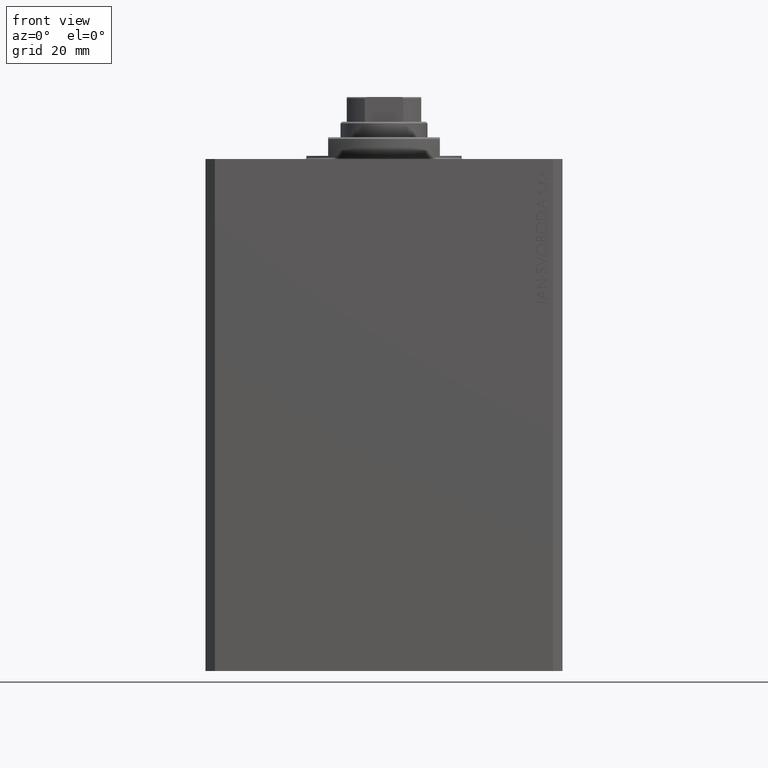
[diagram: clean part render]
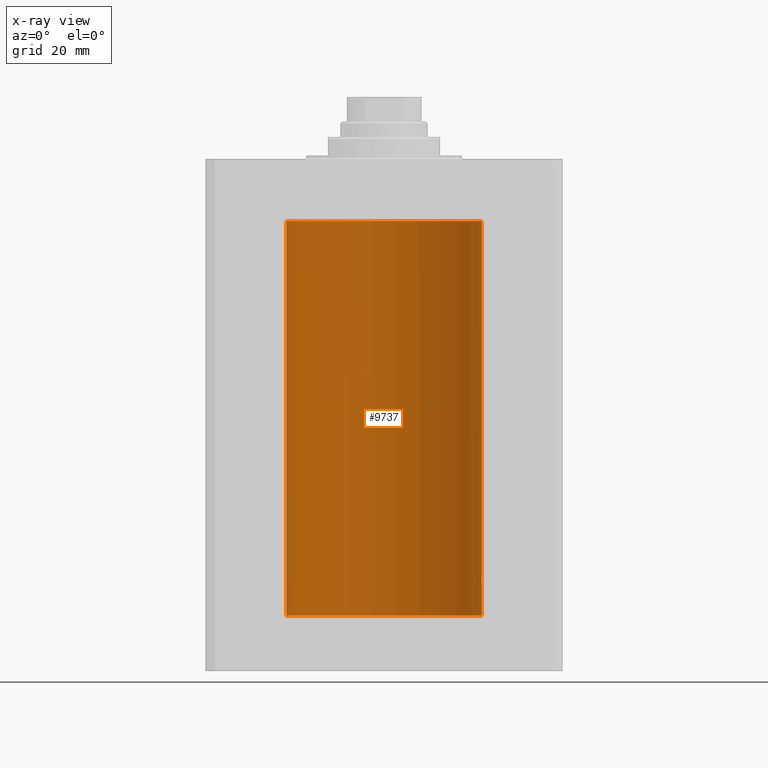
[diagram: x-ray — body ghosted, one internal face saturated and labeled with its STEP entity id]
A machine part, front view, then the same camera in x-ray: the body is ghosted and one INTERNAL B-rep face — a face not visible from any outside direction — is saturated and labeled: STEP entity #9737.
In plain terms, the highlighted cylindrical surface (partial cylindrical patch) has radius 31.5 mm, axis along (0, 0, 1).
Its self-contained STEP definition (entity closure, byte-faithful):
#36 = EDGE_CURVE ( 'NONE', #34369, #35394, #16657, .T. ) ;
#721 = VERTEX_POINT ( 'NONE', #12939 ) ;
#889 = CARTESIAN_POINT ( 'NONE',  ( 31.47656038302703507, 1.219789706799898843, -134.4096921557544988 ) ) ;
#915 = CARTESIAN_POINT ( 'NONE',  ( -31.45162599326494757, 1.747914105633341375, -27.99368423768024527 ) ) ;
#1194 = VERTEX_POINT ( 'NONE', #14681 ) ;
#2192 = CARTESIAN_POINT ( 'NONE',  ( -31.44868630248347330, 1.797956860106296073, -29.88573445525094385 ) ) ;
#4098 = CARTESIAN_POINT ( 'NONE',  ( -31.46402885784291215, 1.507852291435628045, -30.32053570646255736 ) ) ;
#4244 = CARTESIAN_POINT ( 'NONE',  ( 31.50000000000000000, 0.000000000000000000, -147.0999999999999943 ) ) ;
#4296 = CARTESIAN_POINT ( 'NONE',  ( 31.44869941755756315, 1.797728078038221655, -135.1138051504310056 ) ) ;
#4353 = CARTESIAN_POINT ( 'NONE',  ( 0.000000000000000000, 0.000000000000000000, -19.99999999999998934 ) ) ;
#4535 = CARTESIAN_POINT ( 'NONE',  ( -31.44046365243112362, 1.935949445030092253, -29.51885062223535172 ) ) ;
#4541 = CARTESIAN_POINT ( 'NONE',  ( 31.50000000000000000, 0.000000000000000000, -147.0999999999999943 ) ) ;
#4649 = ORIENTED_EDGE ( 'NONE', *, *, #8785, .T. ) ;
#5117 = EDGE_CURVE ( 'NONE', #17691, #721, #7513, .T. ) ;
#5355 = CARTESIAN_POINT ( 'NONE',  ( -31.43990583976198039, 1.947383405442052906, -28.47504952007440693 ) ) ;
#5769 = CARTESIAN_POINT ( 'NONE',  ( 31.47236118406704364, 1.322499398534440429, -137.5059945699081823 ) ) ;
#6626 = EDGE_LOOP ( 'NONE', ( #33779, #41831, #30183, #24681, #27179, #4649, #27835, #20178, #39862 ) ) ;
#7513 = LINE ( 'NONE', #21658, #18940 ) ;
#7669 = CARTESIAN_POINT ( 'NONE',  ( 31.43644381923627051, 2.000000000000389910, -136.0000000000000000 ) ) ;
#7776 = EDGE_CURVE ( 'NONE', #1194, #41801, #36487, .T. ) ;
#7894 = CARTESIAN_POINT ( 'NONE',  ( 31.49597888575898708, 0.5193621964009151881, -134.0641961002934295 ) ) ;
#7916 = CARTESIAN_POINT ( 'NONE',  ( -31.50000000000000000, 1.397936845058764387E-14, -27.00000000000000000 ) ) ;
#7978 = EDGE_CURVE ( 'NONE', #11215, #41801, #10881, .T. ) ;
#8732 = CARTESIAN_POINT ( 'NONE',  ( -31.49597709302052451, 0.5194777340345942962, -30.93577488239865758 ) ) ;
#8785 = EDGE_CURVE ( 'NONE', #25109, #34369, #25209, .T. ) ;
#9151 = CARTESIAN_POINT ( 'NONE',  ( 31.49916827061299784, 0.2622045237009093532, -137.9870193222189130 ) ) ;
#9186 = CARTESIAN_POINT ( 'NONE',  ( -31.44279716593210949, 1.898163692853223061, -29.64354408641193928 ) ) ;
#9369 = CARTESIAN_POINT ( 'NONE',  ( 31.47656968928225751, 1.219587704424718533, -137.5905023401450933 ) ) ;
#9438 = DIRECTION ( 'NONE',  ( 1.000000000000000000, 0.000000000000000000, 0.000000000000000000 ) ) ;
#9581 = CARTESIAN_POINT ( 'NONE',  ( 31.45992223434330981, 1.599182806012582558, -137.2291100714819265 ) ) ;
#9737 = ADVANCED_FACE ( 'NONE', ( #41451 ), #38083, .F. ) ;
#10171 = DIRECTION ( 'NONE',  ( -0.000000000000000000, -0.000000000000000000, 1.000000000000000000 ) ) ;
#10436 = DIRECTION ( 'NONE',  ( 1.000000000000000000, 0.000000000000000000, 0.000000000000000000 ) ) ;
#10535 = VECTOR ( 'NONE', #22914, 1000.000000000000000 ) ;
#10881 = B_SPLINE_CURVE_WITH_KNOTS ( 'NONE', 3,
 ( #7916, #29622, #12127, #14443, #39957, #31736, #12340, #26264, #25820, #22441, #915, #5355, #43101, #32788, #28364, #4535, #9186, #2192, #26040, #22899, #4098, #18256, #39513, #17815, #21623, #42060, #8732, #31521, #14887, #36146 ),
 .UNSPECIFIED., .F., .F.,
 ( 4, 2, 2, 2, 2, 2, 2, 2, 2, 2, 2, 2, 2, 2, 4 ),
 ( 2.625213444697534148E-19, 0.0003909052907595647391, 0.0007818105815191293698, 0.001172715872278693892, 0.001563621163038258956, 0.002345431744557394723, 0.003127242326076530923, 0.003518147616836098807, 0.003909052907595665823, 0.004299958198355233706, 0.004690863489114801589, 0.005081768779874370340, 0.005472674070633938223, 0.005863579361393506106, 0.006254484652153074857 ),
 .UNSPECIFIED. ) ;
#11115 = DIRECTION ( 'NONE',  ( 1.000000000000000000, 0.000000000000000000, 0.000000000000000000 ) ) ;
#11128 = CARTESIAN_POINT ( 'NONE',  ( -31.50000000000000000, 3.857637408943224358E-15, -30.99999999999999645 ) ) ;
#11215 = VERTEX_POINT ( 'NONE', #11738 ) ;
#11262 = CARTESIAN_POINT ( 'NONE',  ( 31.44280827872263018, 1.897980201673368450, -135.3559202626804563 ) ) ;
#11490 = CARTESIAN_POINT ( 'NONE',  ( 31.48420706794360058, 1.003217712170305864, -134.2649149328429132 ) ) ;
#11738 = CARTESIAN_POINT ( 'NONE',  ( -31.50000000000000000, 1.397936845058764387E-14, -27.00000000000000000 ) ) ;
#12127 = CARTESIAN_POINT ( 'NONE',  ( -31.49916865039979186, 0.2621451228717642246, -27.01297480444316079 ) ) ;
#12340 = CARTESIAN_POINT ( 'NONE',  ( -31.48424881603013148, 1.001951351791703804, -27.26414944111796856 ) ) ;
#12526 = CARTESIAN_POINT ( 'NONE',  ( 31.49362851683618914, 0.6450141649083286355, -137.8976700761137124 ) ) ;
#12555 = VECTOR ( 'NONE', #10171, 1000.000000000000000 ) ;
#12939 = CARTESIAN_POINT ( 'NONE',  ( 31.50000000000000000, -5.244345426788806144E-15, -138.0000000000000000 ) ) ;
#13476 = EDGE_CURVE ( 'NONE', #11215, #35394, #25835, .T. ) ;
#14443 = CARTESIAN_POINT ( 'NONE',  ( -31.49600294595510164, 0.5178263803265128473, -27.06380656104273896 ) ) ;
#14479 = DIRECTION ( 'NONE',  ( -0.000000000000000000, -0.000000000000000000, 1.000000000000000000 ) ) ;
#14681 = CARTESIAN_POINT ( 'NONE',  ( -31.50000000000000000, 3.857637417314162689E-15, -147.0999999999999943 ) ) ;
#14887 = CARTESIAN_POINT ( 'NONE',  ( -31.50000000000000000, 0.1305468079557571826, -31.00000000000000000 ) ) ;
#15637 = EDGE_CURVE ( 'NONE', #39467, #25109, #26590, .T. ) ;
#15893 = CARTESIAN_POINT ( 'NONE',  ( 31.50000000000000000, -5.244345426788806144E-15, -138.0000000000000000 ) ) ;
#16563 = CARTESIAN_POINT ( 'NONE',  ( 31.49600115550921231, 0.5179422407981826293, -137.9361644646872378 ) ) ;
#16657 = CIRCLE ( 'NONE', #25346, 31.50000000000000000 ) ;
#17691 = VERTEX_POINT ( 'NONE', #4244 ) ;
#17815 = CARTESIAN_POINT ( 'NONE',  ( -31.48420048909751756, 1.003425746290474763, -30.73496696875380607 ) ) ;
#18010 = CARTESIAN_POINT ( 'NONE',  ( 31.45991621267056004, 1.590260824275577356, -134.7801457396745093 ) ) ;
#18183 = CARTESIAN_POINT ( 'NONE',  ( -31.50000000000000000, 3.857637417314162689E-15, -19.99999999999998934 ) ) ;
#18256 = CARTESIAN_POINT ( 'NONE',  ( -31.47242045906136099, 1.321166510329244925, -30.50729961746650076 ) ) ;
#18940 = VECTOR ( 'NONE', #14479, 1000.000000000000000 ) ;
#19029 = AXIS2_PLACEMENT_3D ( 'NONE', #27761, #34727, #11115 ) ;
#19788 = CARTESIAN_POINT ( 'NONE',  ( 0.000000000000000000, 0.000000000000000000, -147.0999999999999943 ) ) ;
#19946 = CARTESIAN_POINT ( 'NONE',  ( 31.43644381923627051, 2.000000000000389910, -136.0000000000000000 ) ) ;
#20178 = ORIENTED_EDGE ( 'NONE', *, *, #13476, .F. ) ;
#21318 = B_SPLINE_CURVE_WITH_KNOTS ( 'NONE', 3,
 ( #15893, #29589, #9151, #16563, #12526, #36564, #39919, #9369, #5769, #9581, #23298, #37002, #26893, #19946 ),
 .UNSPECIFIED., .F., .F.,
 ( 4, 2, 2, 2, 2, 2, 4 ),
 ( 5.096331421419789159E-18, 0.0003909946087814292703, 0.0007819892175628534448, 0.001172983826344277999, 0.001563978435125702553, 0.002345967652688551661, 0.003127956870251400769 ),
 .UNSPECIFIED. ) ;
#21385 = CARTESIAN_POINT ( 'NONE',  ( 31.43728213781475489, 1.986944500966170146, -135.7370380017273135 ) ) ;
#21599 = CARTESIAN_POINT ( 'NONE',  ( 31.49916210907646175, 0.2630769646869162703, -134.0130766648357508 ) ) ;
#21623 = CARTESIAN_POINT ( 'NONE',  ( -31.48775605676681266, 0.8865158617371098337, -30.79757944476694576 ) ) ;
#21658 = CARTESIAN_POINT ( 'NONE',  ( 31.50000000000000000, 0.000000000000000000, -147.0999999999999943 ) ) ;
#22238 = CARTESIAN_POINT ( 'NONE',  ( -31.50000000000000000, 3.857637417314162689E-15, -147.0999999999999943 ) ) ;
#22441 = CARTESIAN_POINT ( 'NONE',  ( -31.45993541206224720, 1.598922699014384996, -27.77056366933358689 ) ) ;
#22899 = CARTESIAN_POINT ( 'NONE',  ( -31.45990328919314649, 1.590516142808641842, -30.21952462249807425 ) ) ;
#22914 = DIRECTION ( 'NONE',  ( -0.000000000000000000, -0.000000000000000000, 1.000000000000000000 ) ) ;
#23298 = CARTESIAN_POINT ( 'NONE',  ( 31.45161214644910075, 1.748160858796773631, -137.0059024499661291 ) ) ;
#24550 = CARTESIAN_POINT ( 'NONE',  ( -31.50000000000000000, 3.857637417314162689E-15, -147.0999999999999943 ) ) ;
#24681 = ORIENTED_EDGE ( 'NONE', *, *, #29332, .T. ) ;
#24916 = CIRCLE ( 'NONE', #25620, 31.50000000000000000 ) ;
#24966 = CARTESIAN_POINT ( 'NONE',  ( 31.48776132734998967, 0.8863252928784803863, -134.2023288708493283 ) ) ;
#24972 = CARTESIAN_POINT ( 'NONE',  ( 31.50000000000000000, -8.369814204394935255E-24, -134.0000000000000000 ) ) ;
#25109 = VERTEX_POINT ( 'NONE', #24972 ) ;
#25180 = CARTESIAN_POINT ( 'NONE',  ( 31.50000000000000711, 0.1305169792915967519, -133.9999999999999432 ) ) ;
#25209 = LINE ( 'NONE', #4541, #33371 ) ;
#25346 = AXIS2_PLACEMENT_3D ( 'NONE', #4353, #28404, #10436 ) ;
#25402 = CARTESIAN_POINT ( 'NONE',  ( 31.50000000000000000, -8.369814204394935255E-24, -134.0000000000000000 ) ) ;
#25620 = AXIS2_PLACEMENT_3D ( 'NONE', #19788, #40217, #9438 ) ;
#25820 = CARTESIAN_POINT ( 'NONE',  ( -31.47237164446477209, 1.322250186170389252, -27.49378908604443694 ) ) ;
#25835 = LINE ( 'NONE', #22238, #10535 ) ;
#26040 = CARTESIAN_POINT ( 'NONE',  ( -31.45224836082999431, 1.735318303535943185, -30.00282216311122951 ) ) ;
#26264 = CARTESIAN_POINT ( 'NONE',  ( -31.47657892357849718, 1.219347894895174589, -27.40931637798618326 ) ) ;
#26590 = B_SPLINE_CURVE_WITH_KNOTS ( 'NONE', 3,
 ( #7669, #42033, #21385, #42259, #11262, #4296, #32367, #18010, #42697, #31712, #889, #11490, #24966, #38673, #7894, #21599, #25180, #25402 ),
 .UNSPECIFIED., .F., .F.,
 ( 4, 2, 2, 2, 2, 2, 2, 2, 4 ),
 ( 0.003127956870251400769, 0.003518772842989208692, 0.003909588815727015748, 0.004300404788464823672, 0.004691220761202631595, 0.005082036733940439518, 0.005472852706678247442, 0.005863668679416054498, 0.006254484652153862421 ),
 .UNSPECIFIED. ) ;
#26893 = CARTESIAN_POINT ( 'NONE',  ( 31.43644381923627762, 2.000000000000387246, -136.2610318865086185 ) ) ;
#27179 = ORIENTED_EDGE ( 'NONE', *, *, #15637, .T. ) ;
#27761 = CARTESIAN_POINT ( 'NONE',  ( 0.000000000000000000, 0.000000000000000000, -147.0999999999999943 ) ) ;
#27835 = ORIENTED_EDGE ( 'NONE', *, *, #36, .T. ) ;
#28364 = CARTESIAN_POINT ( 'NONE',  ( -31.43727648790974172, 1.987033456253953112, -29.26230567213424294 ) ) ;
#28404 = DIRECTION ( 'NONE',  ( 0.000000000000000000, 0.000000000000000000, 1.000000000000000000 ) ) ;
#29332 = EDGE_CURVE ( 'NONE', #721, #39467, #21318, .T. ) ;
#29589 = CARTESIAN_POINT ( 'NONE',  ( 31.50000000000000711, 0.1322106156816646172, -138.0000000000000568 ) ) ;
#29622 = CARTESIAN_POINT ( 'NONE',  ( -31.50000000000000711, 0.1321804137546035152, -27.00000000000000711 ) ) ;
#30183 = ORIENTED_EDGE ( 'NONE', *, *, #5117, .T. ) ;
#31521 = CARTESIAN_POINT ( 'NONE',  ( -31.49916171907896256, 0.2631371420809984762, -30.98691729972353315 ) ) ;
#31712 = CARTESIAN_POINT ( 'NONE',  ( 31.47243113015943550, 1.320912165297383201, -134.4924797776056948 ) ) ;
#31736 = CARTESIAN_POINT ( 'NONE',  ( -31.48773989768472603, 0.8870801819049330961, -27.20270307449468916 ) ) ;
#32367 = CARTESIAN_POINT ( 'NONE',  ( 31.45226167581968113, 1.735077252816690230, -134.9967648169954657 ) ) ;
#32788 = CARTESIAN_POINT ( 'NONE',  ( -31.43644085734510796, 2.000046555665927261, -29.12976806868835666 ) ) ;
#33371 = VECTOR ( 'NONE', #38922, 1000.000000000000000 ) ;
#33779 = ORIENTED_EDGE ( 'NONE', *, *, #7776, .F. ) ;
#34369 = VERTEX_POINT ( 'NONE', #42473 ) ;
#34727 = DIRECTION ( 'NONE',  ( -0.000000000000000000, -0.000000000000000000, 1.000000000000000000 ) ) ;
#35394 = VERTEX_POINT ( 'NONE', #18183 ) ;
#36146 = CARTESIAN_POINT ( 'NONE',  ( -31.50000000000000000, 3.857637408943224358E-15, -30.99999999999999645 ) ) ;
#36487 = LINE ( 'NONE', #24550, #12555 ) ;
#36564 = CARTESIAN_POINT ( 'NONE',  ( 31.48773468680478160, 0.8872681233992232297, -137.7972062396702313 ) ) ;
#37002 = CARTESIAN_POINT ( 'NONE',  ( 31.43989559156923264, 1.947546710638696110, -136.5243738522823378 ) ) ;
#38083 = CYLINDRICAL_SURFACE ( 'NONE', #19029, 31.50000000000000000 ) ;
#38544 = EDGE_CURVE ( 'NONE', #17691, #1194, #24916, .T. ) ;
#38673 = CARTESIAN_POINT ( 'NONE',  ( 31.49364883223205425, 0.6440257487116654023, -134.1019945078124351 ) ) ;
#38922 = DIRECTION ( 'NONE',  ( -0.000000000000000000, -0.000000000000000000, 1.000000000000000000 ) ) ;
#39467 = VERTEX_POINT ( 'NONE', #42226 ) ;
#39513 = CARTESIAN_POINT ( 'NONE',  ( -31.47655123270016375, 1.220027114947935809, -30.59012812369856960 ) ) ;
#39862 = ORIENTED_EDGE ( 'NONE', *, *, #7978, .T. ) ;
#39919 = CARTESIAN_POINT ( 'NONE',  ( 31.48424227690099642, 1.002158581476550347, -137.7357332860677843 ) ) ;
#39957 = CARTESIAN_POINT ( 'NONE',  ( -31.49363138352033431, 0.6448700584747274478, -27.10228292539639128 ) ) ;
#40217 = DIRECTION ( 'NONE',  ( 0.000000000000000000, 0.000000000000000000, 1.000000000000000000 ) ) ;
#41451 = FACE_OUTER_BOUND ( 'NONE', #6626, .T. ) ;
#41801 = VERTEX_POINT ( 'NONE', #11128 ) ;
#41831 = ORIENTED_EDGE ( 'NONE', *, *, #38544, .F. ) ;
#42033 = CARTESIAN_POINT ( 'NONE',  ( 31.43644381923627051, 2.000000000000391687, -135.8695436863447412 ) ) ;
#42060 = CARTESIAN_POINT ( 'NONE',  ( -31.49364602877929897, 0.6441674297270015837, -30.89795957697708317 ) ) ;
#42226 = CARTESIAN_POINT ( 'NONE',  ( 31.43644381923627051, 2.000000000000389910, -136.0000000000000000 ) ) ;
#42259 = CARTESIAN_POINT ( 'NONE',  ( 31.44047330683569186, 1.935793094480593224, -135.4805747813048526 ) ) ;
#42473 = CARTESIAN_POINT ( 'NONE',  ( 31.50000000000000000, 0.000000000000000000, -19.99999999999998934 ) ) ;
#42697 = CARTESIAN_POINT ( 'NONE',  ( 31.46404119587053927, 1.507594711990238201, -134.6791728524376310 ) ) ;
#43101 = CARTESIAN_POINT ( 'NONE',  ( -31.43644976744935349, 1.999906504661145057, -28.73831721771797731 ) ) ;